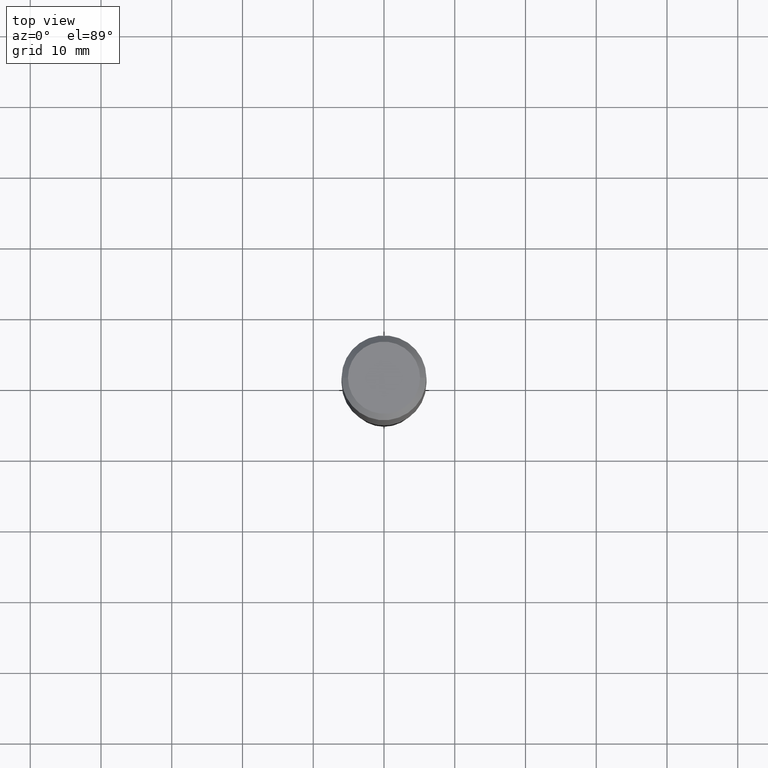
[diagram: clean part render]
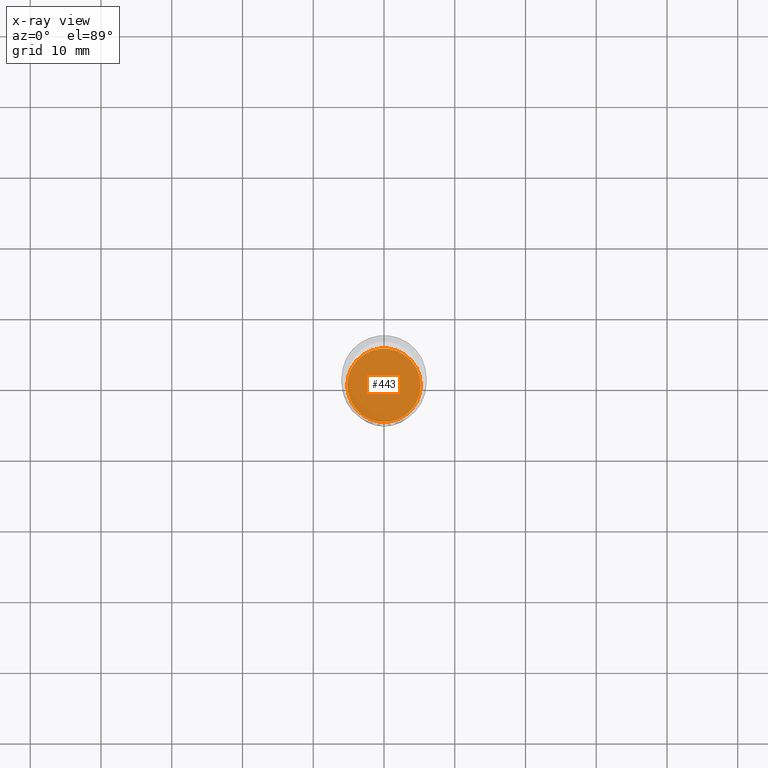
[diagram: x-ray — body ghosted, one internal face saturated and labeled with its STEP entity id]
A machine part, top view, then the same camera in x-ray: the body is ghosted and one INTERNAL B-rep face — a face not visible from any outside direction — is saturated and labeled: STEP entity #443.
In plain terms, the highlighted planar face has unit normal (-0, 0, 1).
Its self-contained STEP definition (entity closure, byte-faithful):
#1 = CARTESIAN_POINT ( 'NONE',  ( 5.969144809017299038E-29, -8.522356799982232966E-15, -2.440900000000000070 ) ) ;
#3 = EDGE_LOOP ( 'NONE', ( #181, #429 ) ) ;
#42 = EDGE_CURVE ( 'NONE', #148, #290, #325, .T. ) ;
#80 = CARTESIAN_POINT ( 'NONE',  ( 0.2042499999999999871, -9.948626926899652657E-15, -2.440900000000000070 ) ) ;
#85 = AXIS2_PLACEMENT_3D ( 'NONE', #237, #433, #361 ) ;
#99 = CARTESIAN_POINT ( 'NONE',  ( 5.969144809017299038E-29, -8.522356799982232966E-15, -2.440900000000000070 ) ) ;
#132 = CIRCLE ( 'NONE', #479, 0.2042499999999999871 ) ;
#148 = VERTEX_POINT ( 'NONE', #346 ) ;
#162 = PLANE ( 'NONE',  #85 ) ;
#181 = ORIENTED_EDGE ( 'NONE', *, *, #197, .F. ) ;
#197 = EDGE_CURVE ( 'NONE', #290, #148, #132, .T. ) ;
#206 = DIRECTION ( 'NONE',  ( 1.000000000000000000, -6.982962677686265922E-15, 0.000000000000000000 ) ) ;
#216 = DIRECTION ( 'NONE',  ( -2.445468806185136597E-29, 3.491481338843145583E-15, 1.000000000000000000 ) ) ;
#236 = FACE_OUTER_BOUND ( 'NONE', #3, .T. ) ;
#237 = CARTESIAN_POINT ( 'NONE',  ( 5.969144809017299038E-29, -8.522356799982232966E-15, -2.440900000000000070 ) ) ;
#290 = VERTEX_POINT ( 'NONE', #80 ) ;
#325 = CIRCLE ( 'NONE', #337, 0.2042499999999999871 ) ;
#337 = AXIS2_PLACEMENT_3D ( 'NONE', #1, #216, #441 ) ;
#346 = CARTESIAN_POINT ( 'NONE',  ( -0.2042499999999999871, -7.068424035018117621E-15, -2.440900000000000070 ) ) ;
#361 = DIRECTION ( 'NONE',  ( 1.000000000000000000, -6.982962677686265922E-15, 4.876176775795935793E-29 ) ) ;
#392 = DIRECTION ( 'NONE',  ( -2.445468806185136597E-29, 3.491481338843145583E-15, 1.000000000000000000 ) ) ;
#429 = ORIENTED_EDGE ( 'NONE', *, *, #42, .F. ) ;
#433 = DIRECTION ( 'NONE',  ( -2.438088387897960049E-29, 3.491481338843145188E-15, 1.000000000000000000 ) ) ;
#441 = DIRECTION ( 'NONE',  ( 1.000000000000000000, -6.982962677686265922E-15, 0.000000000000000000 ) ) ;
#443 = ADVANCED_FACE ( 'NONE', ( #236 ), #162, .F. ) ;
#479 = AXIS2_PLACEMENT_3D ( 'NONE', #99, #392, #206 ) ;